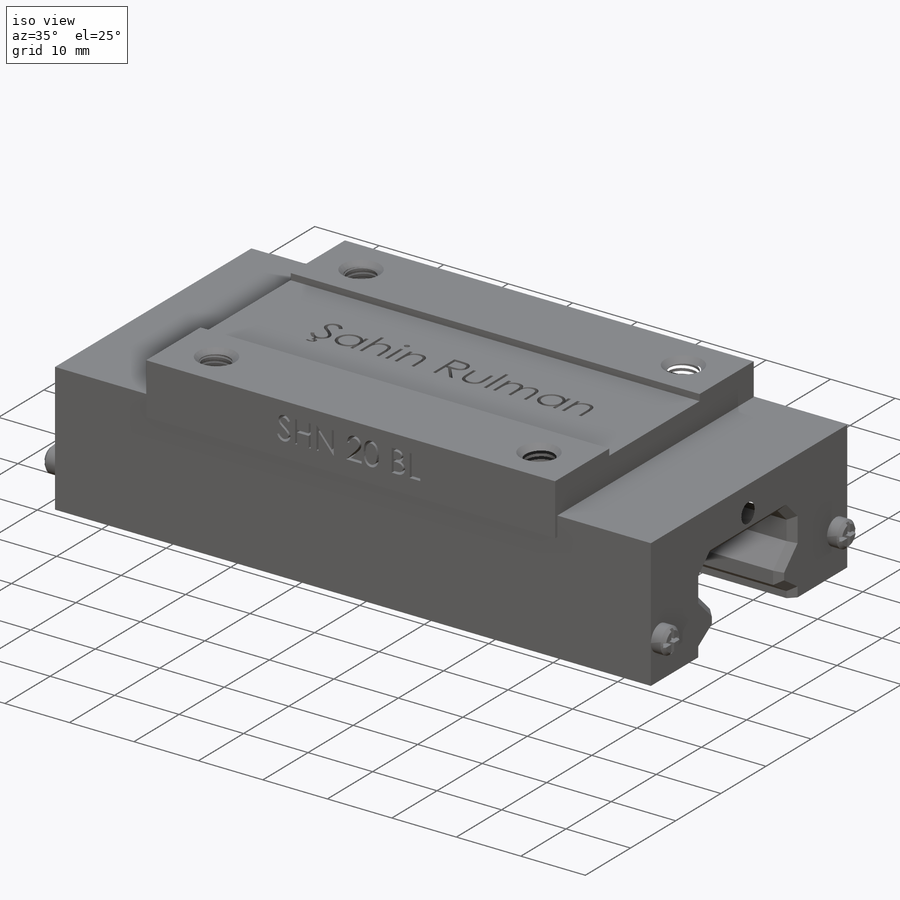
[diagram: iso view]
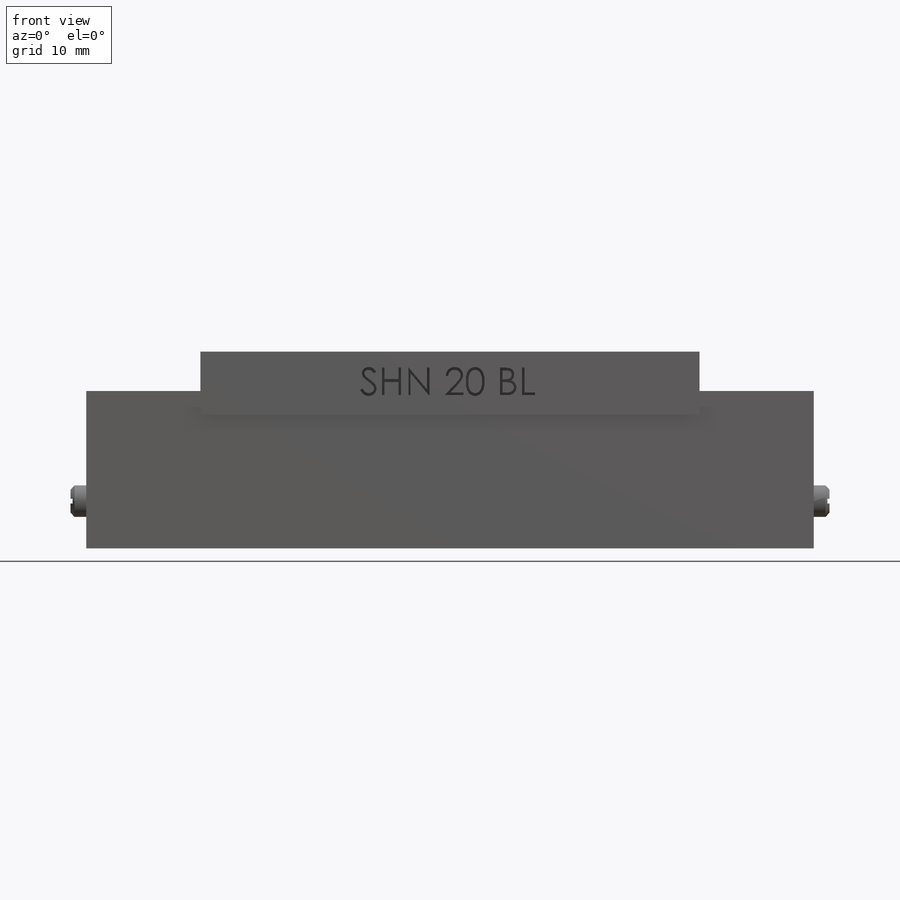
[diagram: front view]
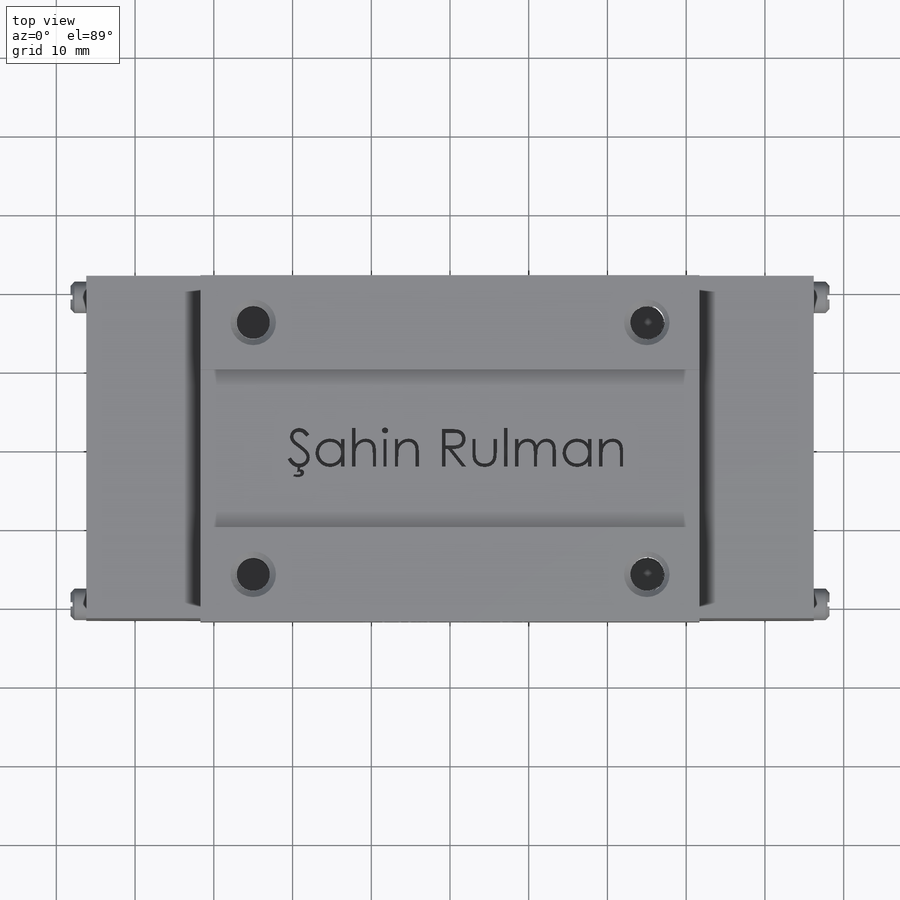
[diagram: top view]
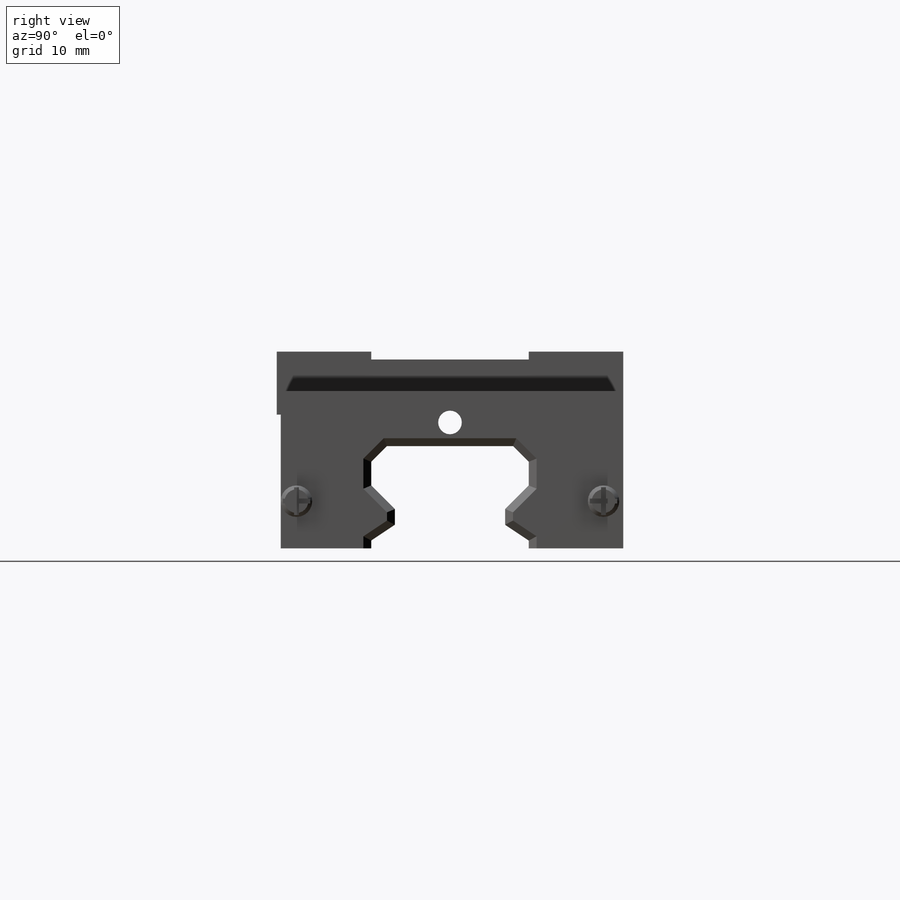
[diagram: right view]
SOLIDWORKS PART (.sldprt)
format: sldprt  version: not decoded by parser v0  size: 1,714,688 bytes
history: native  units: mm
features: sketch x11, mirror x7, cut_extrude x5, chamfer x4, extrude x3, material x1, helix x1, plane x1, sweep x1 (+11 scaffold rows collapsed)
feature tree (45):
  scaffold x11  (default folders/planes/origin — collapsed)
  material  "Material <not specified>"
  sketch  "Sketch1"  dims[D1=44.0mm D2=22.0mm D3=30.0mm D4=8.0mm D5=0.5mm D6=25.0mm D9=1.0mm D7=10.0mm D8=10.0mm]
  extrude  "Boss-Extrude1"  Depth=63.4mm
  sketch  "Sketch2"  dims[D1=0.0mm D2=5.0mm D3=0.0mm]
  extrude  "Boss-Extrude2"  Depth=14.5mm
  mirror  "Mirror1"
  sketch  "Sketch7"  dims[D2=4.0mm D5=3.5mm D6=1.75mm D7=1.75mm D8=3.5mm D1=6.0mm D3=0.3mm D4=0.3mm]
  extrude  "Boss-Extrude5"  Depth=2mm
  chamfer  "Chamfer1"  Distance=0.5mm Angle=45deg
  mirror  "Mirror2"
  mirror  "Mirror3"
  mirror  "Mirror4"
  sketch  "Sketch8"  dims[c1.D5=4.2mm c1.D1=25.0mm c1.D2=25.0mm c1.D3=32.0mm c1.D4=25.0mm c1.D6=25.0mm c2.D1=32.0mm c2.D2=32.0mm c3.D1=16.0mm c3.D2=16.0mm c3.D3=18.0mm c3.D4=18.0mm]
  cut_extrude  "Cut-Extrude1"  Depth=8mm
  chamfer  "Chamfer2"  Distance=0.8mm Angle=45deg
  sketch  "Sketch9"
  helix  "Helix/Spiral1"  Pitch=8mm
  plane  "Plane1"
  sketch  "Sketch10"  dims[D1=0.4mm]
  sketch  "Sketch11"  dims[c1.D1=20.0mm c1.D3=2.0mm c1.D4=2.0mm c1.D5=3.0mm c1.D6=3.0mm c1.D7=3.0mm c1.D8=2.0mm c1.D9=2.0mm c1.D10=6.0mm c1.D11=5.0mm c1.D12=18.0mm c1.D2=3.0mm c2.D11=10.0mm c2.D12=18.0mm c2.D2=18.0mm]
  cut_extrude  "Cut-Extrude2"  [1 undecoded]
  chamfer  "Chamfer3"  Distance=1mm Angle=45deg
  chamfer  "Chamfer4"  Distance=1mm Angle=45deg
  sketch  "Sketch12"
  cut_extrude  "Cut-Extrude3"  Depth=2mm
  sketch  "Sketch13"
  cut_extrude  "Cut-Extrude4"  Depth=2mm
  sketch  "Sketch15"  dims[D1=0.4mm]
  sweep  "Cut-Sweep4"
  mirror  "Mirror7"
  mirror  "Mirror8"
  sketch  "Sketch16"  dims[D1=3.0mm D2=4.0mm]
  cut_extrude  "Cut-Extrude5"  [1 undecoded]
  mirror  "Mirror9"
decode coverage: 19 of 32 modeling features carry decoded parameters
note: 2 parameter values undecoded
note: suppression state not decoded; provenance and decode notes live in map.json
